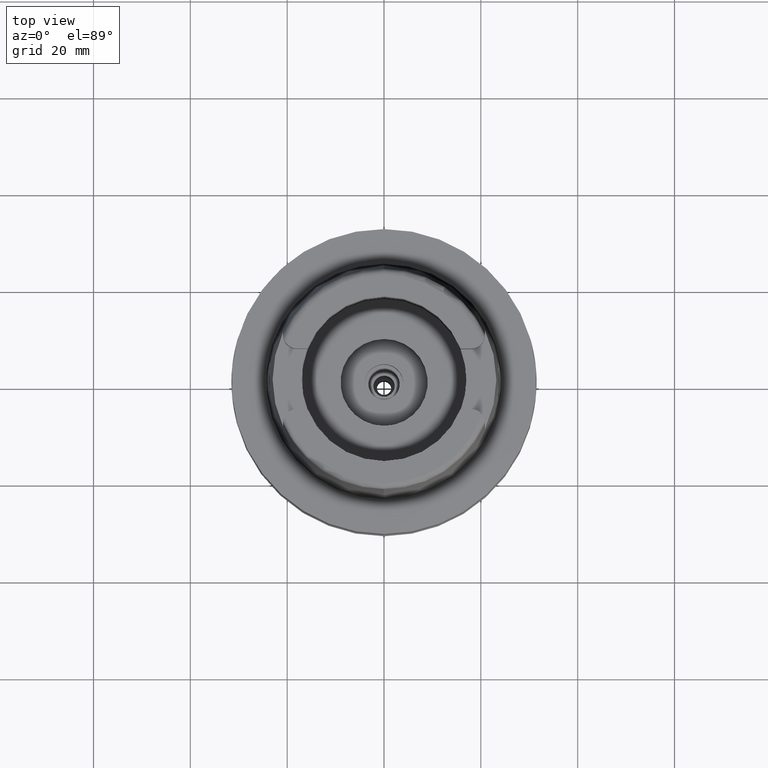
[diagram: clean part render]
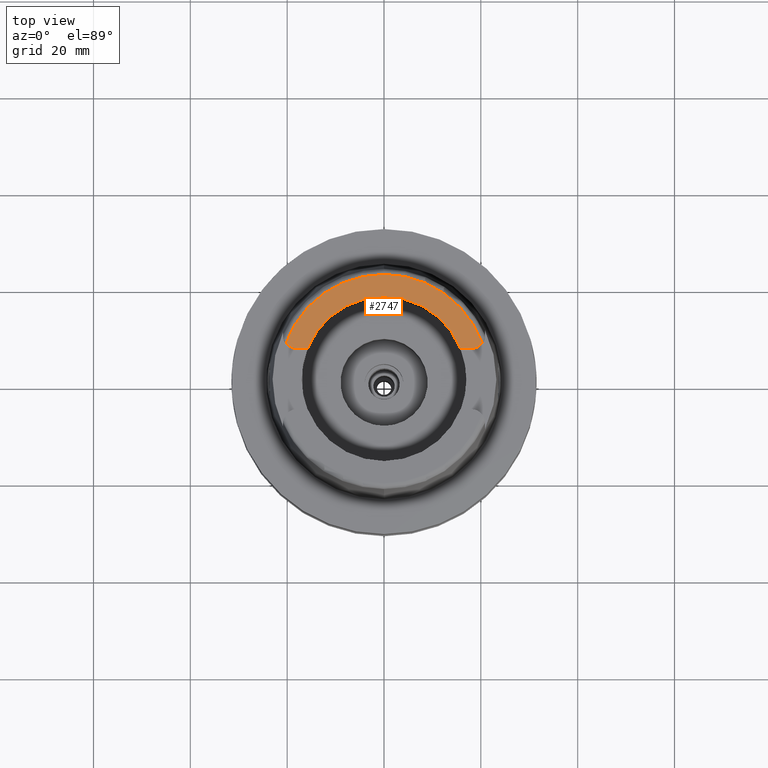
[diagram: same view with one face highlighted and labeled with its STEP entity id]
A machine part, top view. The second image highlights one B-rep face of the part: STEP entity #2747.
In plain terms, the highlighted planar face has unit normal (0, 0, -1).
Its self-contained STEP definition (entity closure, byte-faithful):
#99=DIRECTION('',(1.E0,-8.644330667353E-14,0.E0));
#100=VECTOR('',#99,2.188509563969E0);
#101=CARTESIAN_POINT('',(1.580149043603E1,6.27E0,3.2E1));
#102=LINE('',#101,#100);
#106=CARTESIAN_POINT('',(-1.799E1,9.15E0,3.2E1));
#107=DIRECTION('',(0.E0,0.E0,-1.E0));
#108=DIRECTION('',(0.E0,-1.E0,0.E0));
#109=AXIS2_PLACEMENT_3D('',#106,#107,#108);
#114=CARTESIAN_POINT('',(0.E0,1.601838013285E-14,3.2E1));
#115=DIRECTION('',(0.E0,0.E0,-1.E0));
#116=DIRECTION('',(-9.395199128801E-1,3.424942821446E-1,0.E0));
#117=AXIS2_PLACEMENT_3D('',#114,#115,#116);
#122=CARTESIAN_POINT('',(0.E0,1.601838013285E-14,3.2E1));
#123=DIRECTION('',(0.E0,0.E0,-1.E0));
#124=DIRECTION('',(9.289215035771E-4,9.999995685523E-1,0.E0));
#125=AXIS2_PLACEMENT_3D('',#122,#123,#124);
#130=CARTESIAN_POINT('',(1.799E1,9.15E0,3.2E1));
#131=DIRECTION('',(0.E0,0.E0,-1.E0));
#132=DIRECTION('',(7.912216523764E-1,-6.115294733787E-1,0.E0));
#133=AXIS2_PLACEMENT_3D('',#130,#131,#132);
#138=CARTESIAN_POINT('',(0.E0,1.691237229622E-14,3.2E1));
#139=DIRECTION('',(0.E0,0.E0,1.E0));
#140=DIRECTION('',(9.294994374136E-1,3.688235294118E-1,0.E0));
#141=AXIS2_PLACEMENT_3D('',#138,#139,#140);
#146=CARTESIAN_POINT('',(0.E0,1.691237229622E-14,3.2E1));
#147=DIRECTION('',(0.E0,0.E0,1.E0));
#148=DIRECTION('',(0.E0,1.E0,0.E0));
#149=AXIS2_PLACEMENT_3D('',#146,#147,#148);
#154=DIRECTION('',(1.E0,8.684914379407E-14,0.E0));
#155=VECTOR('',#154,2.188509563969E0);
#156=CARTESIAN_POINT('',(-1.799E1,6.27E0,3.2E1));
#157=LINE('',#156,#155);
#2331=CARTESIAN_POINT('',(0.E0,1.7E1,3.2E1));
#2332=VERTEX_POINT('',#2331);
#2333=CARTESIAN_POINT('',(1.580149043603E1,6.27E0,3.2E1));
#2334=VERTEX_POINT('',#2333);
#2347=CARTESIAN_POINT('',(1.799E1,6.27E0,3.2E1));
#2348=VERTEX_POINT('',#2347);
#2349=CARTESIAN_POINT('',(-1.799E1,6.27E0,3.2E1));
#2350=CARTESIAN_POINT('',(-1.580149043603E1,6.27E0,3.2E1));
#2351=VERTEX_POINT('',#2349);
#2352=VERTEX_POINT('',#2350);
#2353=CARTESIAN_POINT('',(-2.026871835884E1,7.388795116670E0,3.2E1));
#2354=VERTEX_POINT('',#2353);
#2355=CARTESIAN_POINT('',(2.004007373911E-2,2.157347527826E1,3.2E1));
#2356=CARTESIAN_POINT('',(2.026871835884E1,7.388795116669E0,3.2E1));
#2357=VERTEX_POINT('',#2355);
#2358=VERTEX_POINT('',#2356);
#2726=CARTESIAN_POINT('',(0.E0,1.616533774875E-14,3.2E1));
#2727=DIRECTION('',(0.E0,0.E0,-1.E0));
#2728=DIRECTION('',(0.E0,-1.E0,0.E0));
#2729=AXIS2_PLACEMENT_3D('',#2726,#2727,#2728);
#2730=PLANE('',#2729);
#2732=ORIENTED_EDGE('',*,*,#2731,.F.);
#2734=ORIENTED_EDGE('',*,*,#2733,.T.);
#2736=ORIENTED_EDGE('',*,*,#2735,.T.);
#2738=ORIENTED_EDGE('',*,*,#2737,.T.);
#2740=ORIENTED_EDGE('',*,*,#2739,.T.);
#2741=ORIENTED_EDGE('',*,*,#2718,.F.);
#2742=ORIENTED_EDGE('',*,*,#2682,.T.);
#2744=ORIENTED_EDGE('',*,*,#2743,.T.);
#2745=EDGE_LOOP('',(#2732,#2734,#2736,#2738,#2740,#2741,#2742,#2744));
#2746=FACE_OUTER_BOUND('',#2745,.F.);
#110=CIRCLE('',#109,2.88E0);
#118=CIRCLE('',#117,2.157348458609E1);
#126=CIRCLE('',#125,2.157348458609E1);
#134=CIRCLE('',#133,2.88E0);
#142=CIRCLE('',#141,1.7E1);
#150=CIRCLE('',#149,1.7E1);
#2682=EDGE_CURVE('',#2334,#2332,#142,.T.);
#2718=EDGE_CURVE('',#2334,#2348,#102,.T.);
#2731=EDGE_CURVE('',#2351,#2352,#157,.T.);
#2733=EDGE_CURVE('',#2351,#2354,#110,.T.);
#2735=EDGE_CURVE('',#2354,#2357,#118,.T.);
#2737=EDGE_CURVE('',#2357,#2358,#126,.T.);
#2739=EDGE_CURVE('',#2358,#2348,#134,.T.);
#2743=EDGE_CURVE('',#2332,#2352,#150,.T.);
#2747=ADVANCED_FACE('',(#2746),#2730,.F.);